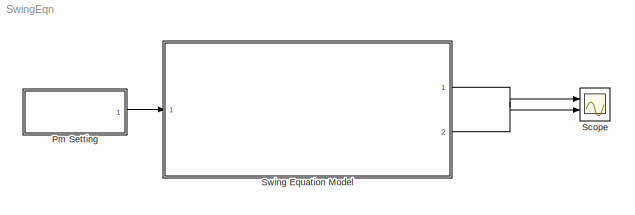
MODEL SwingEqn
KIND model
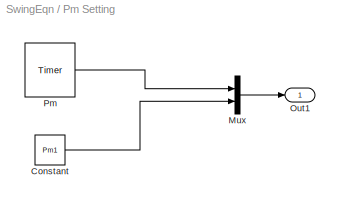
BLOCK [SubSystem] Pm Setting
  FunctionWithSeparateData = off
  MaskCallbackString = |
  MaskEnableString = on,on
  MaskHideContents = off
  MaskIconFrame = on
  MaskIconOpaque = on
  MaskIconRotate = none
  MaskIconUnits = autoscale
  MaskPortRotate = default
  MaskPromptString = Initial Mechanical Input (MW)|Final Mechanical Input (MW)
  MaskStyleString = edit,edit
  MaskTabNameString = ,
  MaskToolTipString = on,on
  MaskTunableValueString = on,on
  MaskValueString = 100|520
  MaskVarAliasString = ,
  MaskVariables = Pm1=@1;Pm2=@2;
  MaskVisibilityString = on,on
  MinAlgLoopOccurrences = off
  Opaque = off
  Ports = [0, 1]
  PropExecContextOutsideSubsystem = off
  RTWSystemCode = Auto
  RequestExecContextInheritance = off
BLOCK [Constant] Pm Setting/Constant
  OutDataType = fixdt(1, 16)
  OutScaling = 2^0
  Value = Pm1
BLOCK [Mux] Pm Setting/Mux
  DisplayOption = bar
  Inputs = 2
  Ports = [2, 1]
BLOCK [Outport] Pm Setting/Out1
  IconDisplay = Port number
  OutDataType = fixdt(1, 16)
  OutScaling = 2^0
BLOCK [Reference] Pm Setting/Pm  REF=powerlib_extras/Control \nBlocks/Timer
  DialogController = POWERSYS.PowerSysDialog
  FunctionWithSeparateData = off
  Ports = [0, 1]
  RTWMemSecDataConstants = Inherit from model
  RTWMemSecDataInternal = Inherit from model
  RTWMemSecDataParameters = Inherit from model
  RTWMemSecFuncExecute = Inherit from model
  RTWMemSecFuncInitTerm = Inherit from model
  ShowPortLabels = FromPortIcon
  SourceBlock = powerlib_extras/Control \nBlocks/Timer
  SourceType = Timer
  SystemSampleTime = -1
  e = [ Pm1 Pm2 ]
  t = [ 0 5 ]
BLOCK [Scope] Scope
  DataFormat = StructureWithTime
  Floating = off
  LimitDataPoints = off
  NumInputPorts = 2
  Ports = [2]
  SampleTime = 0.0001
  YMax = 5~5
  YMin = -5~-5
  ZoomMode = xonly
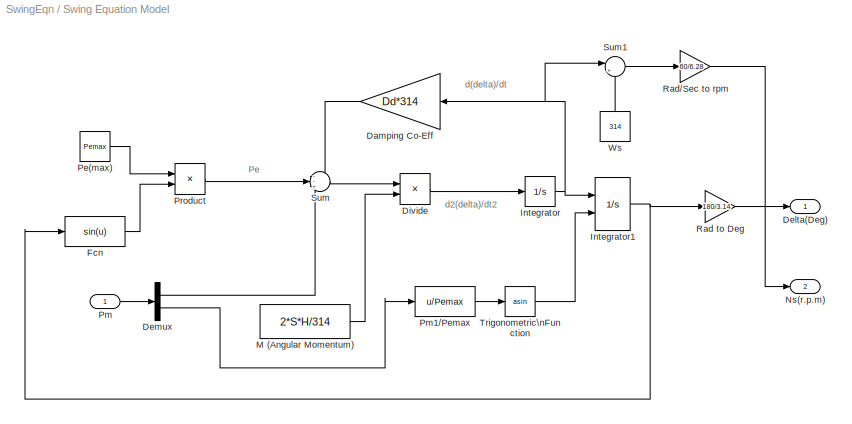
BLOCK [SubSystem] Swing Equation Model
  FunctionWithSeparateData = off
  MaskCallbackString = |||
  MaskEnableString = on,on,on,on
  MaskHideContents = off
  MaskIconFrame = on
  MaskIconOpaque = on
  MaskIconRotate = none
  MaskIconUnits = autoscale
  MaskPortRotate = default
  MaskPromptString = Rating (MVA)|Inertia Constant (MJ/MVA)|Max Power Capability (MW)|Damping Torque co-eff (N-m-sec)
  MaskStyleString = edit,edit,edit,edit
  MaskTabNameString = ,,,
  MaskToolTipString = on,on,on,on
  MaskTunableValueString = on,on,on,on
  MaskValueString = 611.76|3.4|813.65|0.008
  MaskVarAliasString = ,,,
  MaskVariables = S=@1;H=@2;Pemax=@3;Dd=@4;
  MaskVisibilityString = on,on,on,on
  MinAlgLoopOccurrences = off
  Opaque = off
  Ports = [1, 2]
  PropExecContextOutsideSubsystem = off
  RTWSystemCode = Auto
  RequestExecContextInheritance = off
BLOCK [Gain] Swing Equation Model/Damping Co-Eff
  Gain = Dd*314
  OutDataType = fixdt(1, 16)
  OutDataTypeMode = Inherit via internal rule
  OutDataTypeStr = Inherit: Inherit via internal rule
  OutScaling = 2^0
  ParamDataTypeStr = Inherit: Inherit via internal rule
  ParameterDataType = fixdt(1, 16)
  ParameterDataTypeMode = Inherit via internal rule
  ParameterScaling = 2^0
  SaturateOnIntegerOverflow = off
BLOCK [Outport] Swing Equation Model/Delta(Deg)
  IconDisplay = Port number
  OutDataType = fixdt(1, 16)
  OutScaling = 2^0
BLOCK [Demux] Swing Equation Model/Demux
  DisplayOption = bar
  Outputs = 2
  Ports = [1, 2]
BLOCK [Product] Swing Equation Model/Divide
  InputSameDT = off
  Inputs = */
  OutDataType = fixdt(1, 16)
  OutDataTypeMode = Inherit via internal rule
  OutDataTypeStr = Inherit: Inherit via internal rule
  OutScaling = 2^-10
  Ports = [2, 1]
  RndMeth = Floor
  SaturateOnIntegerOverflow = off
BLOCK [Fcn] Swing Equation Model/Fcn
  Expr = sin(u)
BLOCK [Integrator] Swing Equation Model/Integrator
  Ports = [1, 1]
BLOCK [Integrator] Swing Equation Model/Integrator1
  InitialCondition = 0.1374
  InitialConditionSource = external
  Ports = [2, 1]
BLOCK [Constant] Swing Equation Model/M (Angular Momentum)
  OutDataType = fixdt(1, 16)
  OutScaling = 2^0
  Value = 2*S*H/314
BLOCK [Outport] Swing Equation Model/Ns(r.p.m)
  IconDisplay = Port number
  OutDataType = fixdt(1, 16)
  OutScaling = 2^0
  Port = 2
BLOCK [Constant] Swing Equation Model/Pe(max)
  OutDataType = fixdt(1, 16)
  OutScaling = 2^0
  Value = Pemax
BLOCK [Inport] Swing Equation Model/Pm
  IconDisplay = Port number
  OutDataType = fixdt(1, 16)
  OutScaling = 2^0
BLOCK [Fcn] Swing Equation Model/Pm1//Pemax
  Expr = u/Pemax
BLOCK [Product] Swing Equation Model/Product
  InputSameDT = off
  OutDataType = fixdt(1, 16)
  OutDataTypeMode = Inherit via internal rule
  OutDataTypeStr = Inherit: Inherit via internal rule
  OutScaling = 2^0
  Ports = [2, 1]
  SaturateOnIntegerOverflow = off
BLOCK [Gain] Swing Equation Model/Rad to Deg
  Gain = 180/3.14
  OutDataType = fixdt(1, 16)
  OutDataTypeMode = Inherit via internal rule
  OutDataTypeStr = Inherit: Inherit via internal rule
  OutScaling = 2^0
  ParamDataTypeStr = Inherit: Inherit via internal rule
  ParameterDataType = fixdt(1, 16)
  ParameterDataTypeMode = Inherit via internal rule
  ParameterScaling = 2^0
  SaturateOnIntegerOverflow = off
BLOCK [Gain] Swing Equation Model/Rad//Sec to rpm 
  Gain = 60/6.28
  OutDataType = fixdt(1, 16)
  OutDataTypeMode = Inherit via internal rule
  OutDataTypeStr = Inherit: Inherit via internal rule
  OutScaling = 2^0
  ParamDataTypeStr = Inherit: Inherit via internal rule
  ParameterDataType = fixdt(1, 16)
  ParameterDataTypeMode = Inherit via internal rule
  ParameterScaling = 2^0
  SaturateOnIntegerOverflow = off
BLOCK [Sum] Swing Equation Model/Sum
  IconShape = round
  InputSameDT = off
  Inputs = --+
  OutDataType = fixdt(1, 16)
  OutDataTypeMode = Inherit via internal rule
  OutDataTypeStr = Inherit: Inherit via internal rule
  OutScaling = 2^0
  Ports = [3, 1]
  SaturateOnIntegerOverflow = off
BLOCK [Sum] Swing Equation Model/Sum1
  IconShape = round
  InputSameDT = off
  Inputs = |++
  OutDataType = fixdt(1, 16)
  OutDataTypeMode = Inherit via internal rule
  OutDataTypeStr = Inherit: Inherit via internal rule
  OutScaling = 2^0
  Ports = [2, 1]
  SaturateOnIntegerOverflow = off
BLOCK [Trigonometry] Swing Equation Model/Trigonometric\nFunction
  Operator = asin
  Ports = [1, 1]
BLOCK [Constant] Swing Equation Model/Ws
  OutDataType = fixdt(1, 16)
  OutScaling = 2^0
  Value = 314
ANNOTATION Swing Equation Model: Pe
ANNOTATION Swing Equation Model: d(delta)/dt
ANNOTATION Swing Equation Model: d2(delta)/dt2
LINE Pm Setting/Constant:1 -> Pm Setting/Mux:2
LINE Pm Setting/Mux:1 -> Pm Setting/Out1:1
LINE Pm Setting/Pm:1 -> Pm Setting/Mux:1
LINE Pm Setting:1 -> Swing Equation Model:1
LINE Swing Equation Model/Damping Co-Eff:1 -> Swing Equation Model/Sum:1
LINE Swing Equation Model/Demux:1 -> Swing Equation Model/Sum:3
LINE Swing Equation Model/Demux:2 -> Swing Equation Model/Pm1//Pemax:1
LINE Swing Equation Model/Divide:1 -> Swing Equation Model/Integrator:1
LINE Swing Equation Model/Fcn:1 -> Swing Equation Model/Product:2
NET Swing Equation Model/Integrator1:1 -> Swing Equation Model/Fcn:1, Swing Equation Model/Rad to Deg:1
NET Swing Equation Model/Integrator:1 -> Swing Equation Model/Damping Co-Eff:1, Swing Equation Model/Integrator1:1, Swing Equation Model/Sum1:1
LINE Swing Equation Model/M (Angular Momentum):1 -> Swing Equation Model/Divide:2
LINE Swing Equation Model/Pe(max):1 -> Swing Equation Model/Product:1
LINE Swing Equation Model/Pm1//Pemax:1 -> Swing Equation Model/Trigonometric\nFunction:1
LINE Swing Equation Model/Pm:1 -> Swing Equation Model/Demux:1
LINE Swing Equation Model/Product:1 -> Swing Equation Model/Sum:2
LINE Swing Equation Model/Rad to Deg:1 -> Swing Equation Model/Delta(Deg):1
LINE Swing Equation Model/Rad//Sec to rpm :1 -> Swing Equation Model/Ns(r.p.m):1
LINE Swing Equation Model/Sum1:1 -> Swing Equation Model/Rad//Sec to rpm :1
LINE Swing Equation Model/Sum:1 -> Swing Equation Model/Divide:1
LINE Swing Equation Model/Trigonometric\nFunction:1 -> Swing Equation Model/Integrator1:2
LINE Swing Equation Model/Ws:1 -> Swing Equation Model/Sum1:2
LINE Swing Equation Model:1 -> Scope:1
LINE Swing Equation Model:2 -> Scope:2
note: NET lines group one-source signal fan-out (src -> all destinations, sorted); 1:1 wires keep LINE
